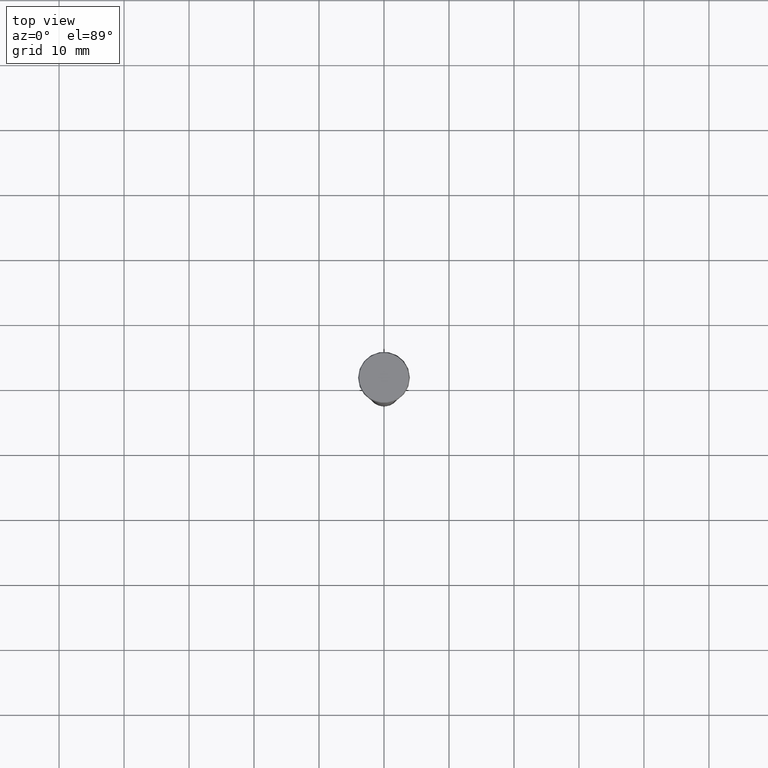
[diagram: clean part render]
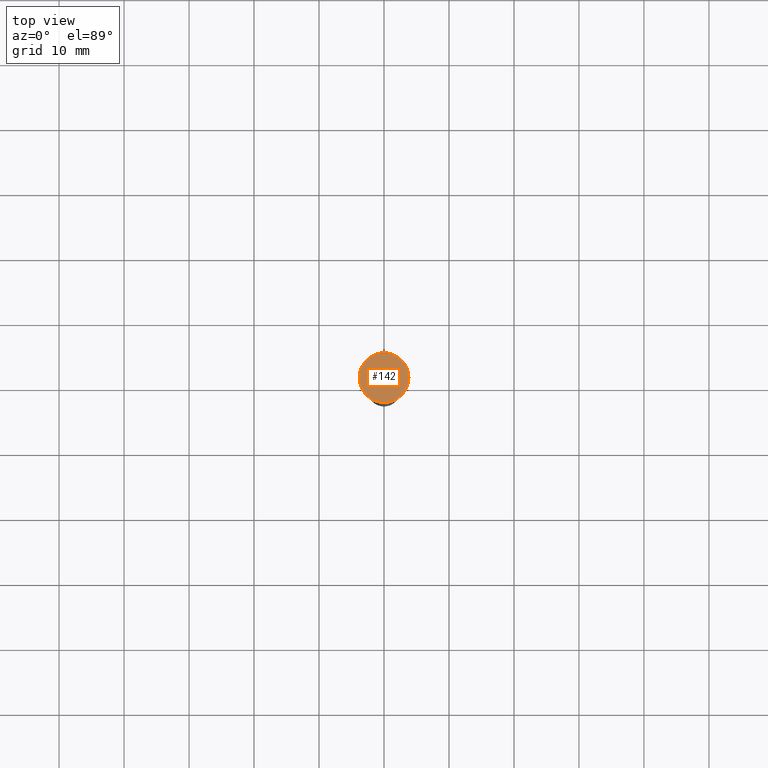
[diagram: same view with one face highlighted and labeled with its STEP entity id]
A machine part, top view. The second image highlights one B-rep face of the part: STEP entity #142.
In plain terms, the highlighted planar face has unit normal (0, 0, 1).
Its self-contained STEP definition (entity closure, byte-faithful):
#9 = FACE_OUTER_BOUND ( 'NONE', #383, .T. ) ;
#29 = CIRCLE ( 'NONE', #184, 3.828427048553670400 ) ;
#38 = CARTESIAN_POINT ( 'NONE',  ( 0.0000000000000000000, 0.0000000000000000000, 2.155049632374812200E-007 ) ) ;
#99 = ORIENTED_EDGE ( 'NONE', *, *, #155, .F. ) ;
#106 = CARTESIAN_POINT ( 'NONE',  ( 0.0000000000000000000, 0.0000000000000000000, 2.155049632374812200E-007 ) ) ;
#142 = ADVANCED_FACE ( 'NONE', ( #9 ), #192, .T. ) ;
#147 = DIRECTION ( 'NONE',  ( 0.0000000000000000000, 0.0000000000000000000, -1.000000000000000000 ) ) ;
#155 = EDGE_CURVE ( 'NONE', #396, #301, #29, .T. ) ;
#173 = DIRECTION ( 'NONE',  ( -1.000000000000000000, 0.0000000000000000000, 0.0000000000000000000 ) ) ;
#182 = CARTESIAN_POINT ( 'NONE',  ( 3.828427048553670400, 0.0000000000000000000, 2.155049632374826500E-007 ) ) ;
#183 = DIRECTION ( 'NONE',  ( 0.0000000000000000000, 0.0000000000000000000, -1.000000000000000000 ) ) ;
#184 = AXIS2_PLACEMENT_3D ( 'NONE', #38, #147, #196 ) ;
#192 = PLANE ( 'NONE',  #214 ) ;
#196 = DIRECTION ( 'NONE',  ( -1.000000000000000000, 0.0000000000000000000, 0.0000000000000000000 ) ) ;
#214 = AXIS2_PLACEMENT_3D ( 'NONE', #182, #401, #268 ) ;
#255 = CIRCLE ( 'NONE', #430, 3.828427048553670400 ) ;
#259 = CARTESIAN_POINT ( 'NONE',  ( -3.828427048553670400, 0.0000000000000000000, 2.155049632374812200E-007 ) ) ;
#268 = DIRECTION ( 'NONE',  ( 1.000000000000000000, 0.0000000000000000000, 0.0000000000000000000 ) ) ;
#301 = VERTEX_POINT ( 'NONE', #259 ) ;
#320 = EDGE_CURVE ( 'NONE', #301, #396, #255, .T. ) ;
#383 = EDGE_LOOP ( 'NONE', ( #407, #99 ) ) ;
#396 = VERTEX_POINT ( 'NONE', #398 ) ;
#398 = CARTESIAN_POINT ( 'NONE',  ( 3.828427048553670400, 4.688470973528645700E-016, 2.155049632374812200E-007 ) ) ;
#401 = DIRECTION ( 'NONE',  ( 0.0000000000000000000, -0.0000000000000000000, 1.000000000000000000 ) ) ;
#407 = ORIENTED_EDGE ( 'NONE', *, *, #320, .F. ) ;
#430 = AXIS2_PLACEMENT_3D ( 'NONE', #106, #183, #173 ) ;